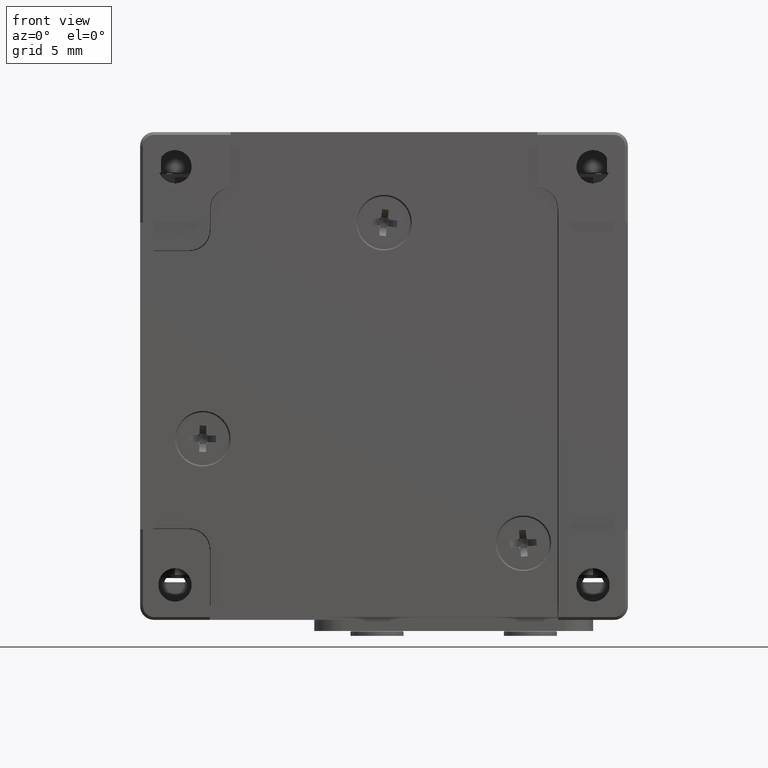
[diagram: clean part render]
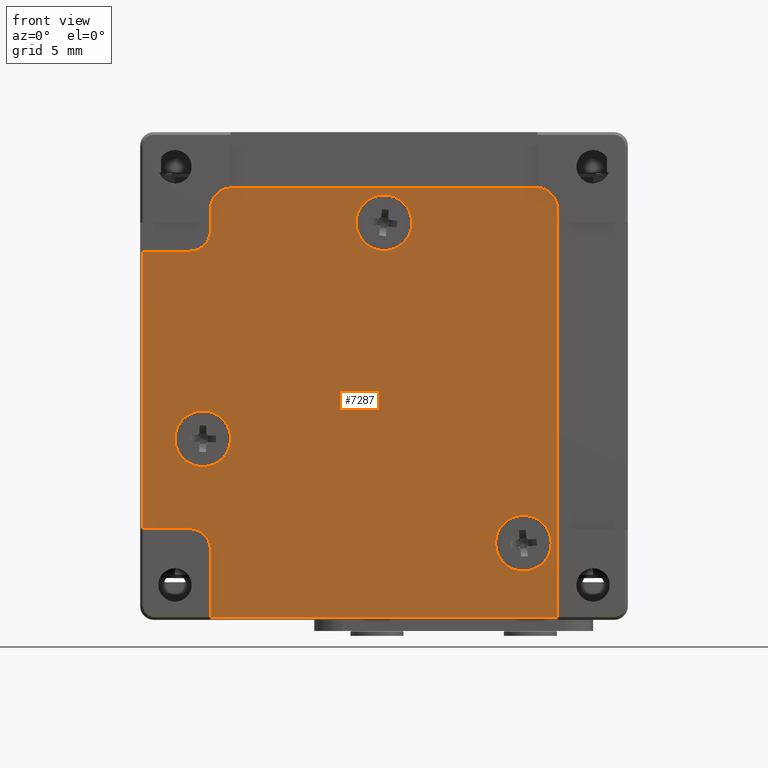
[diagram: same view with one face highlighted and labeled with its STEP entity id]
A machine part, front view. The second image highlights one B-rep face of the part: STEP entity #7287.
In plain terms, the highlighted planar face has unit normal (0, 1, 0).
Its self-contained STEP definition (entity closure, byte-faithful):
#24 = CARTESIAN_POINT ( 'NONE',  ( -12.44999999999999751, 0.000000000000000000, -7.000000000000000000 ) ) ;
#54 = VECTOR ( 'NONE', #8172, 1000.000000000000000 ) ;
#294 = DIRECTION ( 'NONE',  ( 1.000000000000000000, 0.000000000000000000, 0.000000000000000000 ) ) ;
#303 = FACE_BOUND ( 'NONE', #8698, .T. ) ;
#372 = ORIENTED_EDGE ( 'NONE', *, *, #3238, .F. ) ;
#397 = ORIENTED_EDGE ( 'NONE', *, *, #16287, .F. ) ;
#475 = ORIENTED_EDGE ( 'NONE', *, *, #8764, .F. ) ;
#520 = LINE ( 'NONE', #3571, #7543 ) ;
#717 = CARTESIAN_POINT ( 'NONE',  ( -13.94999999999999929, 10.94999999999999929, -7.000000000000000000 ) ) ;
#887 = DIRECTION ( 'NONE',  ( 1.000000000000000000, 0.000000000000000000, 0.000000000000000000 ) ) ;
#904 = EDGE_CURVE ( 'NONE', #17877, #1897, #6733, .T. ) ;
#1070 = CARTESIAN_POINT ( 'NONE',  ( -17.35000000000000142, -8.949999999999999289, -7.000000000000000000 ) ) ;
#1113 = VERTEX_POINT ( 'NONE', #7483 ) ;
#1140 = CARTESIAN_POINT ( 'NONE',  ( 12.44999999999999929, -12.00000000000000178, -7.000000000000000000 ) ) ;
#1377 = VERTEX_POINT ( 'NONE', #7036 ) ;
#1488 = LINE ( 'NONE', #24, #54 ) ;
#1765 = DIRECTION ( 'NONE',  ( -0.000000000000000000, -0.000000000000000000, -1.000000000000000000 ) ) ;
#1777 = FACE_BOUND ( 'NONE', #16094, .T. ) ;
#1877 = CARTESIAN_POINT ( 'NONE',  ( -10.94999999999999929, -12.00000000000000000, -7.000000000000000000 ) ) ;
#1886 = DIRECTION ( 'NONE',  ( -1.000000000000000000, 0.000000000000000000, 0.000000000000000000 ) ) ;
#1897 = VERTEX_POINT ( 'NONE', #18382 ) ;
#2024 = CARTESIAN_POINT ( 'NONE',  ( 0.000000000000000000, -11.00000000000000000, -7.000000000000003553 ) ) ;
#2574 = DIRECTION ( 'NONE',  ( -1.000000000000000000, -0.000000000000000000, 0.000000000000000000 ) ) ;
#2637 = VERTEX_POINT ( 'NONE', #15676 ) ;
#3146 = DIRECTION ( 'NONE',  ( 0.000000000000000000, 0.000000000000000000, 1.000000000000000000 ) ) ;
#3162 = VERTEX_POINT ( 'NONE', #17164 ) ;
#3238 = EDGE_CURVE ( 'NONE', #14408, #17877, #520, .T. ) ;
#3380 = ORIENTED_EDGE ( 'NONE', *, *, #16487, .F. ) ;
#3444 = PLANE ( 'NONE',  #19498 ) ;
#3571 = CARTESIAN_POINT ( 'NONE',  ( -17.35000000000000142, 0.000000000000000000, -7.000000000000000000 ) ) ;
#3619 = CARTESIAN_POINT ( 'NONE',  ( 0.000000000000000000, -8.949999999999999289, -7.000000000000000000 ) ) ;
#3637 = CIRCLE ( 'NONE', #17323, 1.499999999999999556 ) ;
#3671 = DIRECTION ( 'NONE',  ( 0.000000000000000000, -1.000000000000000000, -0.000000000000000000 ) ) ;
#3812 = DIRECTION ( 'NONE',  ( 0.000000000000000000, -1.000000000000000000, -0.000000000000000000 ) ) ;
#4070 = CARTESIAN_POINT ( 'NONE',  ( -13.94999999999999929, -10.44999999999999929, -7.000000000000000000 ) ) ;
#4131 = LINE ( 'NONE', #16873, #14096 ) ;
#4321 = VERTEX_POINT ( 'NONE', #17024 ) ;
#4502 = EDGE_CURVE ( 'NONE', #10114, #14537, #13083, .T. ) ;
#4637 = CARTESIAN_POINT ( 'NONE',  ( 12.44999999999999929, 0.000000000000000000, -7.000000000000000000 ) ) ;
#4718 = FACE_OUTER_BOUND ( 'NONE', #12270, .T. ) ;
#4862 = DIRECTION ( 'NONE',  ( -1.000000000000000000, 0.000000000000000000, 0.000000000000000000 ) ) ;
#4939 = LINE ( 'NONE', #4637, #10700 ) ;
#4978 = AXIS2_PLACEMENT_3D ( 'NONE', #5479, #18679, #887 ) ;
#5184 = CARTESIAN_POINT ( 'NONE',  ( 0.000000000000000000, 17.30000000000000071, -7.000000000000000000 ) ) ;
#5291 = AXIS2_PLACEMENT_3D ( 'NONE', #15678, #1765, #19048 ) ;
#5479 = CARTESIAN_POINT ( 'NONE',  ( 10.94999999999999751, -12.00000000000000178, -7.000000000000000000 ) ) ;
#6662 = ORIENTED_EDGE ( 'NONE', *, *, #18579, .F. ) ;
#6733 = LINE ( 'NONE', #3619, #15823 ) ;
#6817 = DIRECTION ( 'NONE',  ( -0.000000000000000000, -0.000000000000000000, -1.000000000000000000 ) ) ;
#7036 = CARTESIAN_POINT ( 'NONE',  ( 7.999999999990452082, 12.00000000000000000, -7.000000000000003553 ) ) ;
#7287 = ADVANCED_FACE ( 'NONE', ( #303, #1777, #12927, #4718 ), #3444, .F. ) ;
#7483 = CARTESIAN_POINT ( 'NONE',  ( -15.00000000000955325, 4.500000000000002665, -7.000000000000003553 ) ) ;
#7543 = VECTOR ( 'NONE', #3671, 1000.000000000000000 ) ;
#7805 = CIRCLE ( 'NONE', #12780, 2.000000000009547918 ) ;
#7867 = ORIENTED_EDGE ( 'NONE', *, *, #4502, .F. ) ;
#8023 = CARTESIAN_POINT ( 'NONE',  ( -13.00000000000000533, 4.500000000000002665, -7.000000000000003553 ) ) ;
#8172 = DIRECTION ( 'NONE',  ( 0.000000000000000000, -1.000000000000000000, -0.000000000000000000 ) ) ;
#8574 = VERTEX_POINT ( 'NONE', #8848 ) ;
#8611 = DIRECTION ( 'NONE',  ( 1.000000000000000000, 0.000000000000000000, -0.000000000000000000 ) ) ;
#8698 = EDGE_LOOP ( 'NONE', ( #3380 ) ) ;
#8764 = EDGE_CURVE ( 'NONE', #1113, #1113, #18143, .T. ) ;
#8848 = CARTESIAN_POINT ( 'NONE',  ( 10.94999999999999751, -13.50000000000000178, -7.000000000000000000 ) ) ;
#8983 = ORIENTED_EDGE ( 'NONE', *, *, #14899, .F. ) ;
#9276 = VECTOR ( 'NONE', #14580, 1000.000000000000000 ) ;
#9505 = DIRECTION ( 'NONE',  ( 1.000000000000000000, 0.000000000000000000, -0.000000000000000000 ) ) ;
#9688 = CARTESIAN_POINT ( 'NONE',  ( -12.44999999999999751, 17.30000000000000071, -7.000000000000000000 ) ) ;
#9991 = ORIENTED_EDGE ( 'NONE', *, *, #15640, .F. ) ;
#10009 = CARTESIAN_POINT ( 'NONE',  ( 10.00000000000000000, 12.00000000000000000, -7.000000000000003553 ) ) ;
#10062 = ORIENTED_EDGE ( 'NONE', *, *, #11877, .F. ) ;
#10114 = VERTEX_POINT ( 'NONE', #14454 ) ;
#10175 = ORIENTED_EDGE ( 'NONE', *, *, #11780, .F. ) ;
#10209 = CARTESIAN_POINT ( 'NONE',  ( -12.44999999999999929, -12.00000000000000000, -7.000000000000000000 ) ) ;
#10346 = CARTESIAN_POINT ( 'NONE',  ( -17.35000000000000142, 10.95000000000000107, -7.000000000000000000 ) ) ;
#10431 = DIRECTION ( 'NONE',  ( -0.000000000000000000, 0.000000000000000000, -1.000000000000000000 ) ) ;
#10470 = ORIENTED_EDGE ( 'NONE', *, *, #904, .F. ) ;
#10700 = VECTOR ( 'NONE', #13709, 1000.000000000000000 ) ;
#10827 = EDGE_CURVE ( 'NONE', #1897, #4321, #19875, .T. ) ;
#11031 = DIRECTION ( 'NONE',  ( -0.000000000000000000, -0.000000000000000000, -1.000000000000000000 ) ) ;
#11722 = LINE ( 'NONE', #18152, #20679 ) ;
#11780 = EDGE_CURVE ( 'NONE', #15448, #10114, #4939, .T. ) ;
#11877 = EDGE_CURVE ( 'NONE', #14537, #3162, #1488, .T. ) ;
#12270 = EDGE_LOOP ( 'NONE', ( #16679, #9991, #8983, #14062, #10470, #372, #397, #18970, #10062, #7867, #10175, #20485 ) ) ;
#12714 = EDGE_CURVE ( 'NONE', #2637, #8574, #13444, .T. ) ;
#12780 = AXIS2_PLACEMENT_3D ( 'NONE', #2024, #6817, #4862 ) ;
#12890 = CARTESIAN_POINT ( 'NONE',  ( -2.000000000009547918, -11.00000000000000000, -7.000000000000003553 ) ) ;
#12927 = FACE_BOUND ( 'NONE', #13880, .T. ) ;
#13083 = LINE ( 'NONE', #5184, #9276 ) ;
#13130 = EDGE_CURVE ( 'NONE', #8574, #15448, #19033, .T. ) ;
#13444 = LINE ( 'NONE', #19882, #17792 ) ;
#13470 = AXIS2_PLACEMENT_3D ( 'NONE', #4070, #10431, #16817 ) ;
#13651 = DIRECTION ( 'NONE',  ( 1.000000000000000000, 0.000000000000000000, -0.000000000000000000 ) ) ;
#13709 = DIRECTION ( 'NONE',  ( -0.000000000000000000, 1.000000000000000000, 0.000000000000000000 ) ) ;
#13880 = EDGE_LOOP ( 'NONE', ( #6662 ) ) ;
#14062 = ORIENTED_EDGE ( 'NONE', *, *, #10827, .F. ) ;
#14096 = VECTOR ( 'NONE', #2574, 1000.000000000000000 ) ;
#14408 = VERTEX_POINT ( 'NONE', #10346 ) ;
#14454 = CARTESIAN_POINT ( 'NONE',  ( 12.44999999999999751, 17.30000000000000071, -7.000000000000000000 ) ) ;
#14537 = VERTEX_POINT ( 'NONE', #9688 ) ;
#14580 = DIRECTION ( 'NONE',  ( -1.000000000000000000, -0.000000000000000000, 0.000000000000000000 ) ) ;
#14709 = DIRECTION ( 'NONE',  ( 0.000000000000000000, 0.000000000000000000, 1.000000000000000000 ) ) ;
#14899 = EDGE_CURVE ( 'NONE', #4321, #15593, #11722, .T. ) ;
#15448 = VERTEX_POINT ( 'NONE', #1140 ) ;
#15468 = EDGE_CURVE ( 'NONE', #3162, #20357, #16315, .T. ) ;
#15593 = VERTEX_POINT ( 'NONE', #10209 ) ;
#15627 = CIRCLE ( 'NONE', #18648, 2.000000000009547918 ) ;
#15640 = EDGE_CURVE ( 'NONE', #15593, #2637, #3637, .T. ) ;
#15676 = CARTESIAN_POINT ( 'NONE',  ( -10.94999999999999929, -13.50000000000000000, -7.000000000000000000 ) ) ;
#15678 = CARTESIAN_POINT ( 'NONE',  ( -13.94999999999999929, 12.44999999999999929, -7.000000000000000000 ) ) ;
#15823 = VECTOR ( 'NONE', #8611, 1000.000000000000000 ) ;
#16057 = DIRECTION ( 'NONE',  ( -1.000000000000000000, 0.000000000000000000, 0.000000000000000000 ) ) ;
#16094 = EDGE_LOOP ( 'NONE', ( #475 ) ) ;
#16203 = CARTESIAN_POINT ( 'NONE',  ( 0.000000000000000000, 0.000000000000000000, -7.000000000000000000 ) ) ;
#16287 = EDGE_CURVE ( 'NONE', #20357, #14408, #4131, .T. ) ;
#16315 = CIRCLE ( 'NONE', #5291, 1.499999999999999556 ) ;
#16487 = EDGE_CURVE ( 'NONE', #18161, #18161, #7805, .T. ) ;
#16679 = ORIENTED_EDGE ( 'NONE', *, *, #12714, .F. ) ;
#16784 = AXIS2_PLACEMENT_3D ( 'NONE', #8023, #11031, #16057 ) ;
#16817 = DIRECTION ( 'NONE',  ( 1.000000000000000000, 0.000000000000000000, 0.000000000000000000 ) ) ;
#16873 = CARTESIAN_POINT ( 'NONE',  ( 0.000000000000000000, 10.94999999999999929, -7.000000000000000000 ) ) ;
#17024 = CARTESIAN_POINT ( 'NONE',  ( -12.44999999999999929, -10.44999999999999929, -7.000000000000000000 ) ) ;
#17164 = CARTESIAN_POINT ( 'NONE',  ( -12.44999999999999929, 12.44999999999999929, -7.000000000000000000 ) ) ;
#17323 = AXIS2_PLACEMENT_3D ( 'NONE', #1877, #14709, #294 ) ;
#17587 = DIRECTION ( 'NONE',  ( -0.000000000000000000, -0.000000000000000000, -1.000000000000000000 ) ) ;
#17792 = VECTOR ( 'NONE', #13651, 1000.000000000000000 ) ;
#17877 = VERTEX_POINT ( 'NONE', #1070 ) ;
#18143 = CIRCLE ( 'NONE', #16784, 2.000000000009547918 ) ;
#18152 = CARTESIAN_POINT ( 'NONE',  ( -12.44999999999999929, 0.000000000000000000, -7.000000000000000000 ) ) ;
#18161 = VERTEX_POINT ( 'NONE', #12890 ) ;
#18382 = CARTESIAN_POINT ( 'NONE',  ( -13.94999999999999929, -8.949999999999999289, -7.000000000000000000 ) ) ;
#18579 = EDGE_CURVE ( 'NONE', #1377, #1377, #15627, .T. ) ;
#18648 = AXIS2_PLACEMENT_3D ( 'NONE', #10009, #17587, #1886 ) ;
#18679 = DIRECTION ( 'NONE',  ( 0.000000000000000000, 0.000000000000000000, 1.000000000000000000 ) ) ;
#18970 = ORIENTED_EDGE ( 'NONE', *, *, #15468, .F. ) ;
#19033 = CIRCLE ( 'NONE', #4978, 1.499999999999999556 ) ;
#19048 = DIRECTION ( 'NONE',  ( 1.000000000000000000, 0.000000000000000000, 0.000000000000000000 ) ) ;
#19498 = AXIS2_PLACEMENT_3D ( 'NONE', #16203, #3146, #9505 ) ;
#19875 = CIRCLE ( 'NONE', #13470, 1.499999999999999556 ) ;
#19882 = CARTESIAN_POINT ( 'NONE',  ( 0.000000000000000000, -13.50000000000000000, -7.000000000000000000 ) ) ;
#20357 = VERTEX_POINT ( 'NONE', #717 ) ;
#20485 = ORIENTED_EDGE ( 'NONE', *, *, #13130, .F. ) ;
#20679 = VECTOR ( 'NONE', #3812, 1000.000000000000000 ) ;